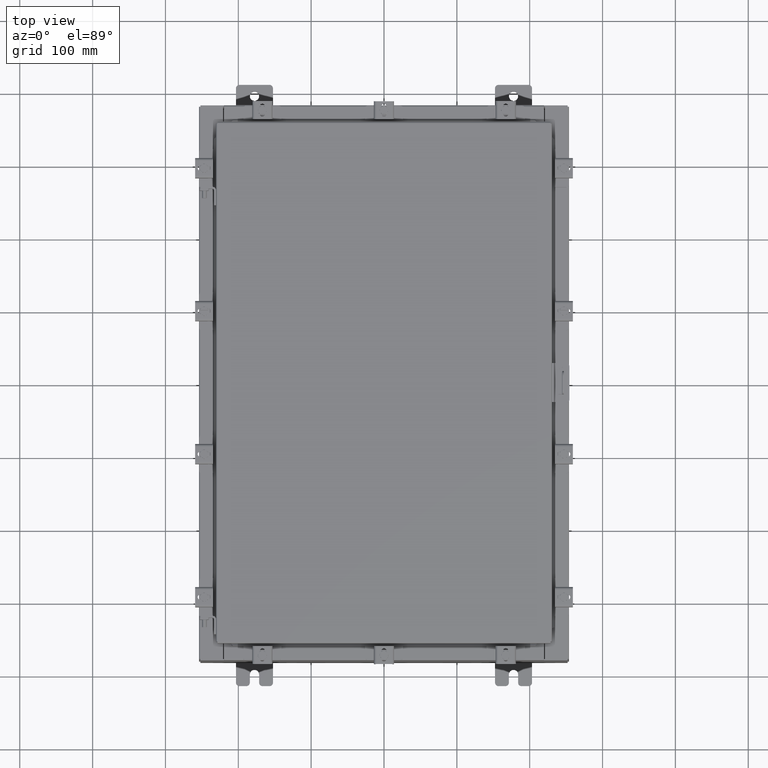
[diagram: clean part render]
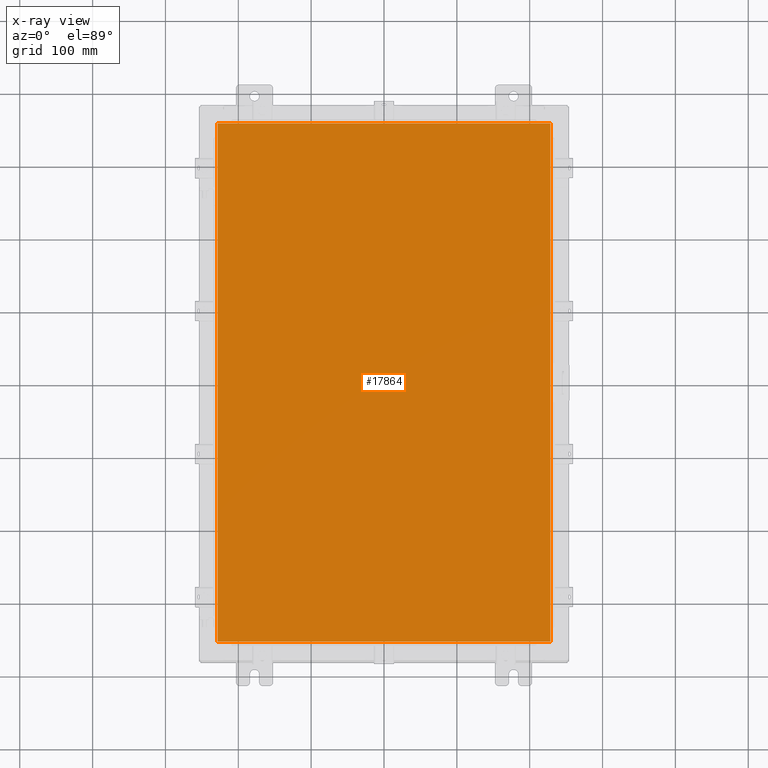
[diagram: x-ray — body ghosted, one internal face saturated and labeled with its STEP entity id]
A machine part, top view, then the same camera in x-ray: the body is ghosted and one INTERNAL B-rep face — a face not visible from any outside direction — is saturated and labeled: STEP entity #17864.
In plain terms, the highlighted planar face has unit normal (0, 0, -1).
Its self-contained STEP definition (entity closure, byte-faithful):
#89 = LINE ( 'NONE', #2186, #13730 ) ;
#771 = CARTESIAN_POINT ( 'NONE',  ( -8.990299999999997700, 14.00629999999999800, -0.07470000000000000300 ) ) ;
#1182 = CARTESIAN_POINT ( 'NONE',  ( 0.0000000000000000000, 0.0000000000000000000, -0.07470000000000000300 ) ) ;
#1416 = ORIENTED_EDGE ( 'NONE', *, *, #3863, .F. ) ;
#1917 = CARTESIAN_POINT ( 'NONE',  ( 8.990300000000001300, 14.00629999999999800, -0.07470000000000000300 ) ) ;
#2186 = CARTESIAN_POINT ( 'NONE',  ( -8.990299999999997700, 14.00630000000000100, -0.07470000000000019700 ) ) ;
#2535 = EDGE_CURVE ( 'NONE', #17871, #19661, #3623, .T. ) ;
#2987 = DIRECTION ( 'NONE',  ( 0.0000000000000000000, 0.0000000000000000000, -1.000000000000000000 ) ) ;
#3623 = LINE ( 'NONE', #13562, #12552 ) ;
#3863 = EDGE_CURVE ( 'NONE', #19661, #22586, #13769, .T. ) ;
#4361 = FACE_OUTER_BOUND ( 'NONE', #15915, .T. ) ;
#5750 = DIRECTION ( 'NONE',  ( 0.0000000000000000000, -1.000000000000000000, 0.0000000000000000000 ) ) ;
#6546 = CARTESIAN_POINT ( 'NONE',  ( -8.990299999999996000, -14.00629999999999600, -0.07470000000000000300 ) ) ;
#6589 = CARTESIAN_POINT ( 'NONE',  ( 8.990300000000001300, 14.00629999999999800, -0.07470000000000019700 ) ) ;
#7582 = AXIS2_PLACEMENT_3D ( 'NONE', #1182, #2987, #15466 ) ;
#8401 = DIRECTION ( 'NONE',  ( -1.000000000000000000, -0.0000000000000000000, -0.0000000000000000000 ) ) ;
#9224 = CARTESIAN_POINT ( 'NONE',  ( 8.990300000000001300, -14.00629999999999800, -0.07470000000000000300 ) ) ;
#9533 = ORIENTED_EDGE ( 'NONE', *, *, #18544, .F. ) ;
#9690 = EDGE_CURVE ( 'NONE', #18366, #17871, #89, .T. ) ;
#9892 = VECTOR ( 'NONE', #8401, 39.37007874015748100 ) ;
#10050 = PLANE ( 'NONE',  #7582 ) ;
#11663 = DIRECTION ( 'NONE',  ( 1.000000000000000000, -0.0000000000000000000, -0.0000000000000000000 ) ) ;
#12552 = VECTOR ( 'NONE', #11663, 39.37007874015748100 ) ;
#13562 = CARTESIAN_POINT ( 'NONE',  ( -8.990299999999996000, -14.00629999999999800, -0.07469999999999800400 ) ) ;
#13730 = VECTOR ( 'NONE', #5750, 39.37007874015748100 ) ;
#13769 = LINE ( 'NONE', #22131, #22199 ) ;
#14645 = LINE ( 'NONE', #6589, #9892 ) ;
#15379 = ORIENTED_EDGE ( 'NONE', *, *, #2535, .F. ) ;
#15465 = ORIENTED_EDGE ( 'NONE', *, *, #9690, .F. ) ;
#15466 = DIRECTION ( 'NONE',  ( -1.000000000000000000, 0.0000000000000000000, -0.0000000000000000000 ) ) ;
#15915 = EDGE_LOOP ( 'NONE', ( #1416, #15379, #15465, #9533 ) ) ;
#17864 = ADVANCED_FACE ( 'NONE', ( #4361 ), #10050, .T. ) ;
#17871 = VERTEX_POINT ( 'NONE', #6546 ) ;
#18366 = VERTEX_POINT ( 'NONE', #771 ) ;
#18544 = EDGE_CURVE ( 'NONE', #22586, #18366, #14645, .T. ) ;
#19661 = VERTEX_POINT ( 'NONE', #9224 ) ;
#20339 = DIRECTION ( 'NONE',  ( 0.0000000000000000000, 1.000000000000000000, 0.0000000000000000000 ) ) ;
#22131 = CARTESIAN_POINT ( 'NONE',  ( 8.990300000000001300, -14.00629999999999800, -0.07470000000000019700 ) ) ;
#22199 = VECTOR ( 'NONE', #20339, 39.37007874015748100 ) ;
#22586 = VERTEX_POINT ( 'NONE', #1917 ) ;